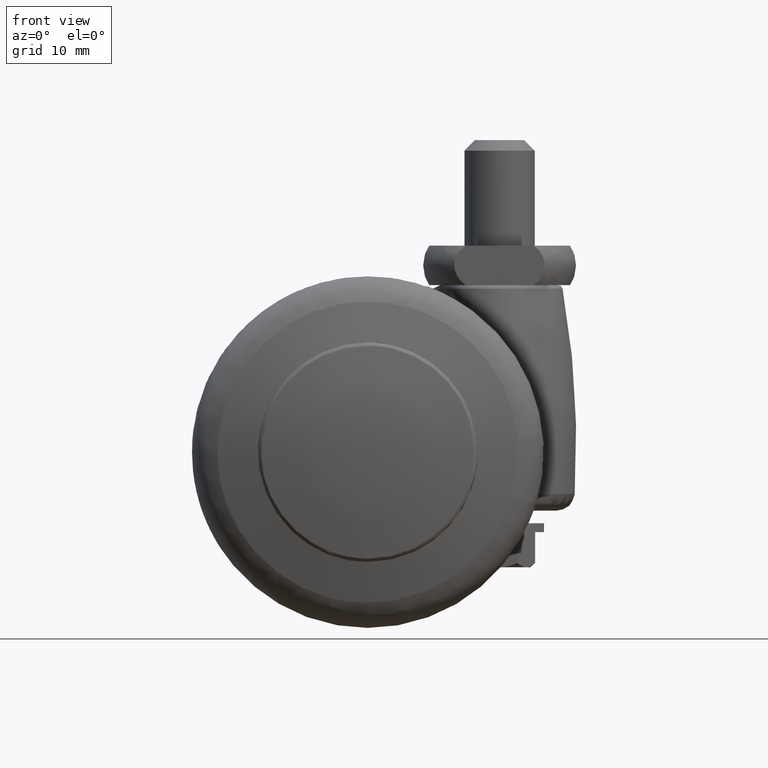
[diagram: clean part render]
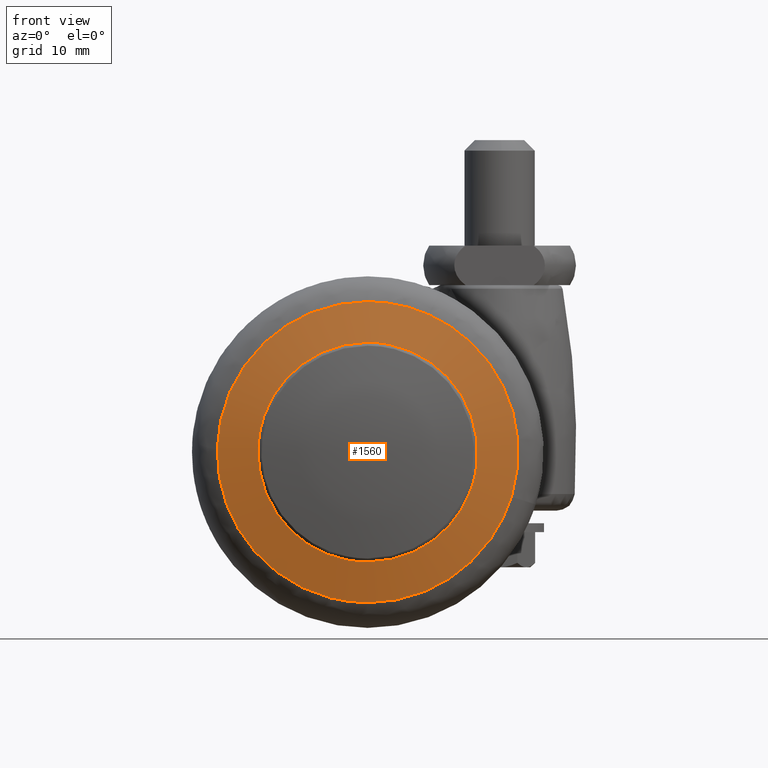
[diagram: same view with one face highlighted and labeled with its STEP entity id]
A machine part, front view. The second image highlights one B-rep face of the part: STEP entity #1560.
In plain terms, the highlighted face is a freeform B-spline surface patch.
Its self-contained STEP definition (entity closure, byte-faithful):
#896=CARTESIAN_POINT('',(12.412620958435820,-20.706821336924602,-1.475412126135098));
#897=VERTEX_POINT('',#896);
#898=CARTESIAN_POINT('',(0.0,-20.706821336924200,12.500000000000000));
#899=VERTEX_POINT('',#898);
#900=CARTESIAN_POINT('',(12.412620958435813,-20.706821336924602,-1.475412126135098));
#901=CARTESIAN_POINT('',(12.500000000000000,-20.706821336924200,-0.740293508558008));
#902=CARTESIAN_POINT('',(12.500000000000000,-20.706821336924200,1.673897E-015));
#903=CARTESIAN_POINT('',(12.499999999999998,-20.706821336924197,12.500000000000004));
#904=CARTESIAN_POINT('',(0.0,-20.706821336924200,12.500000000000000));
#912=(BOUNDED_CURVE()B_SPLINE_CURVE(2,(#900,#901,#902,#903,#904),.UNSPECIFIED.,.F.,.U.)B_SPLINE_CURVE_WITH_KNOTS((3,2,3),(0.229562688735906,0.250000000000000,0.500000000000000),.UNSPECIFIED.)CURVE()GEOMETRIC_REPRESENTATION_ITEM()RATIONAL_B_SPLINE_CURVE((0.956027176028841,0.976056200479869,1.0,0.707106781186547,1.0))REPRESENTATION_ITEM(''));
#913=EDGE_CURVE('',#897,#899,#912,.T.);
#915=CARTESIAN_POINT('',(-12.476686037530531,-20.706821336924570,0.763089457790354));
#916=VERTEX_POINT('',#915);
#917=CARTESIAN_POINT('',(0.0,-20.706821336924200,12.500000000000000));
#918=CARTESIAN_POINT('',(-11.758842158579212,-20.706821336924200,12.500000000000004));
#919=CARTESIAN_POINT('',(-12.476686037530529,-20.706821336924573,0.763089457790354));
#927=(BOUNDED_CURVE()B_SPLINE_CURVE(2,(#917,#918,#919),.UNSPECIFIED.,.F.,.U.)B_SPLINE_CURVE_WITH_KNOTS((3,3),(0.500000000000000,0.739333201304873),.UNSPECIFIED.)CURVE()GEOMETRIC_REPRESENTATION_ITEM()RATIONAL_B_SPLINE_CURVE((1.0,0.719603713203550,0.976072554031050))REPRESENTATION_ITEM(''));
#928=EDGE_CURVE('',#899,#916,#927,.T.);
#995=CARTESIAN_POINT('',(0.0,-20.706821336924200,-12.500000000000000));
#996=VERTEX_POINT('',#995);
#997=CARTESIAN_POINT('',(0.0,-20.706821336924200,-12.500000000000000));
#998=CARTESIAN_POINT('',(11.102195812201003,-20.706821336924211,-12.499999999999998));
#999=CARTESIAN_POINT('',(12.412620958435813,-20.706821336924602,-1.475412126135098));
#1007=(BOUNDED_CURVE()B_SPLINE_CURVE(2,(#997,#998,#999),.UNSPECIFIED.,.F.,.U.)B_SPLINE_CURVE_WITH_KNOTS((3,3),(0.0,0.229562688735906),.UNSPECIFIED.)CURVE()GEOMETRIC_REPRESENTATION_ITEM()RATIONAL_B_SPLINE_CURVE((1.0,0.731050580706679,0.956027176028841))REPRESENTATION_ITEM(''));
#1008=EDGE_CURVE('',#996,#897,#1007,.T.);
#1042=CARTESIAN_POINT('',(-12.476686037530529,-20.706821336924573,0.763089457790354));
#1043=CARTESIAN_POINT('',(-12.499999999999996,-20.706821336924197,0.381900873800916));
#1044=CARTESIAN_POINT('',(-12.500000000000000,-20.706821336924200,1.673897E-015));
#1045=CARTESIAN_POINT('',(-12.499999999999998,-20.706821336924197,-12.499999999999998));
#1046=CARTESIAN_POINT('',(0.0,-20.706821336924200,-12.500000000000000));
#1054=(BOUNDED_CURVE()B_SPLINE_CURVE(2,(#1042,#1043,#1044,#1045,#1046),.UNSPECIFIED.,.F.,.U.)B_SPLINE_CURVE_WITH_KNOTS((3,2,3),(0.739333201304873,0.750000000000000,1.0),.UNSPECIFIED.)CURVE()GEOMETRIC_REPRESENTATION_ITEM()RATIONAL_B_SPLINE_CURVE((0.976072554031050,0.987503067982997,1.0,0.707106781186547,1.0))REPRESENTATION_ITEM(''));
#1055=EDGE_CURVE('',#916,#996,#1054,.T.);
#1095=CARTESIAN_POINT('',(6.939526629438012,-19.550340797989250,15.652259647310309));
#1096=VERTEX_POINT('',#1095);
#1097=CARTESIAN_POINT('',(0.0,-19.550340798363852,17.121631401930902));
#1098=VERTEX_POINT('',#1097);
#1099=CARTESIAN_POINT('',(6.939526629438012,-19.550340797989247,15.652259647310315));
#1100=CARTESIAN_POINT('',(3.625325319825641,-19.550340798363859,17.121631401930895));
#1101=CARTESIAN_POINT('',(0.0,-19.550340798363852,17.121631401930902));
#1109=(BOUNDED_CURVE()B_SPLINE_CURVE(2,(#1099,#1100,#1101),.UNSPECIFIED.,.F.,.U.)B_SPLINE_CURVE_WITH_KNOTS((3,3),(0.431175101876103,0.500000000000000),.UNSPECIFIED.)CURVE()GEOMETRIC_REPRESENTATION_ITEM()RATIONAL_B_SPLINE_CURVE((0.883129907826458,0.919366616215936,1.0))REPRESENTATION_ITEM(''));
#1110=EDGE_CURVE('',#1096,#1098,#1109,.T.);
#1130=CARTESIAN_POINT('',(16.348838775160761,-19.550340797973998,-5.085836471327559));
#1131=VERTEX_POINT('',#1130);
#1145=CARTESIAN_POINT('',(0.0,-19.550340798363852,-17.121631401930902));
#1146=VERTEX_POINT('',#1145);
#1147=CARTESIAN_POINT('',(0.0,-19.550340798363852,-17.121631401930902));
#1148=CARTESIAN_POINT('',(12.604714456254973,-19.550340798363852,-17.121631401930902));
#1149=CARTESIAN_POINT('',(16.348838775160754,-19.550340797974002,-5.085836471327559));
#1157=(BOUNDED_CURVE()B_SPLINE_CURVE(2,(#1147,#1148,#1149),.UNSPECIFIED.,.F.,.U.)B_SPLINE_CURVE_WITH_KNOTS((3,3),(0.0,0.199458637678867),.UNSPECIFIED.)CURVE()GEOMETRIC_REPRESENTATION_ITEM()RATIONAL_B_SPLINE_CURVE((1.0,0.766319670360362,0.905515822338890))REPRESENTATION_ITEM(''));
#1158=EDGE_CURVE('',#1146,#1131,#1157,.T.);
#1160=CARTESIAN_POINT('',(0.0,-19.550340798363852,17.121631401930902));
#1161=CARTESIAN_POINT('',(-17.121631401930909,-19.550340798363848,17.121631401930909));
#1162=CARTESIAN_POINT('',(-17.121631401930902,-19.550340798363852,1.673897E-015));
#1163=CARTESIAN_POINT('',(-17.121631401930909,-19.550340798363848,-17.121631401930909));
#1164=CARTESIAN_POINT('',(0.0,-19.550340798363852,-17.121631401930902));
#1172=(BOUNDED_CURVE()B_SPLINE_CURVE(2,(#1160,#1161,#1162,#1163,#1164),.UNSPECIFIED.,.F.,.U.)B_SPLINE_CURVE_WITH_KNOTS((3,2,3),(0.500000000000000,0.750000000000000,1.0),.UNSPECIFIED.)CURVE()GEOMETRIC_REPRESENTATION_ITEM()RATIONAL_B_SPLINE_CURVE((1.0,0.707106781186548,1.0,0.707106781186548,1.0))REPRESENTATION_ITEM(''));
#1173=EDGE_CURVE('',#1098,#1146,#1172,.T.);
#1195=CARTESIAN_POINT('',(16.348838775160754,-19.550340797974002,-5.085836471327559));
#1196=CARTESIAN_POINT('',(17.121631401930905,-19.550340798363852,-2.601631138450280));
#1197=CARTESIAN_POINT('',(17.121631401930902,-19.550340798363852,1.673897E-015));
#1198=CARTESIAN_POINT('',(17.121631401930905,-19.550340798363859,11.137960189752578));
#1199=CARTESIAN_POINT('',(6.939526629438012,-19.550340797989247,15.652259647310320));
#1207=(BOUNDED_CURVE()B_SPLINE_CURVE(2,(#1195,#1196,#1197,#1198,#1199),.UNSPECIFIED.,.F.,.U.)B_SPLINE_CURVE_WITH_KNOTS((3,2,3),(0.199458637678867,0.250000000000000,0.431175101876103),.UNSPECIFIED.)CURVE()GEOMETRIC_REPRESENTATION_ITEM()RATIONAL_B_SPLINE_CURVE((0.905515822338890,0.940787110826186,1.0,0.787740164970612,0.883129907826457))REPRESENTATION_ITEM(''));
#1208=EDGE_CURVE('',#1131,#1096,#1207,.T.);
#1524=CARTESIAN_POINT('',(-18.310628749320689,-16.237022235372859,-18.310675383740250));
#1525=CARTESIAN_POINT('',(-9.376559857249843,-19.048870121855661,-18.753167475877259));
#1526=CARTESIAN_POINT('',(9.376082475118245,-19.048870121855650,-18.753167475877259));
#1527=CARTESIAN_POINT('',(18.309740503354313,-16.237301788378854,-18.310719376160712));
#1528=CARTESIAN_POINT('',(-18.753122022886593,-19.048884790703795,-9.376584892135011));
#1529=CARTESIAN_POINT('',(-9.608764507157520,-22.000000000000082,-9.608788979236655));
#1530=CARTESIAN_POINT('',(9.608275302955528,-22.000000000000060,-9.608788979236655));
#1531=CARTESIAN_POINT('',(18.752213400388388,-19.049178018297241,-9.376607964309704));
#1532=CARTESIAN_POINT('',(-18.753122022886593,-19.048884790703795,9.376585601870605));
#1533=CARTESIAN_POINT('',(-9.608764507157520,-22.000000000000082,9.608789706548318));
#1534=CARTESIAN_POINT('',(9.608275302955528,-22.000000000000060,9.608789706548318));
#1535=CARTESIAN_POINT('',(18.752213400388388,-19.049178018297241,9.376608674047045));
#1536=CARTESIAN_POINT('',(-18.310628683914587,-16.237021819744019,18.310676704311724));
#1537=CARTESIAN_POINT('',(-9.376559822947105,-19.048869685896101,18.753168826742606));
#1538=CARTESIAN_POINT('',(9.376082440817253,-19.048869685896090,18.753168826742606));
#1539=CARTESIAN_POINT('',(18.309740437951223,-16.237301372748025,18.310720696735199));
#1547=(BOUNDED_SURFACE()B_SPLINE_SURFACE(2,2,((#1524,#1528,#1532,#1536),(#1525,#1529,#1533,#1537),(#1526,#1530,#1534,#1538),(#1527,#1531,#1535,#1539)),.UNSPECIFIED.,.F.,.F.,.U.)B_SPLINE_SURFACE_WITH_KNOTS((3,1,3),(3,1,3),(12.971453956127171,31.525726569823799,50.079054543018337),(12.971406701183319,31.525726569823810,50.080047842884063),.UNSPECIFIED.)GEOMETRIC_REPRESENTATION_ITEM()RATIONAL_B_SPLINE_SURFACE(((1.049528625008468,1.024764249433332,1.024764249433332,1.049528628757415),(1.024764375575136,1.0,1.0,1.024764379324083),(1.024764375575136,1.0,1.0,1.024764379324083),(1.049526103463377,1.024761727888241,1.024761727888241,1.049526107212324)))REPRESENTATION_ITEM('')SURFACE());
#1548=ORIENTED_EDGE('',*,*,#1158,.T.);
#1549=ORIENTED_EDGE('',*,*,#1208,.T.);
#1550=ORIENTED_EDGE('',*,*,#1110,.T.);
#1551=ORIENTED_EDGE('',*,*,#1173,.T.);
#1552=EDGE_LOOP('',(#1548,#1549,#1550,#1551));
#1553=FACE_OUTER_BOUND('',#1552,.T.);
#1554=ORIENTED_EDGE('',*,*,#928,.F.);
#1555=ORIENTED_EDGE('',*,*,#913,.F.);
#1556=ORIENTED_EDGE('',*,*,#1008,.F.);
#1557=ORIENTED_EDGE('',*,*,#1055,.F.);
#1558=EDGE_LOOP('',(#1554,#1555,#1556,#1557));
#1559=FACE_BOUND('',#1558,.T.);
#1560=ADVANCED_FACE('',(#1553,#1559),#1547,.T.);